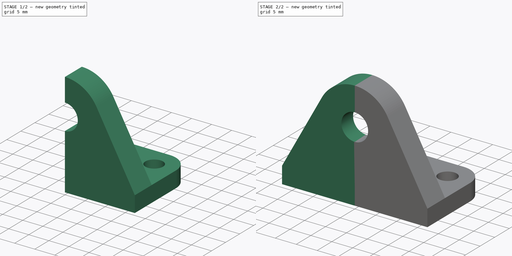
[diagram: build sequence overview — one tinted view per stage of 2, left to right]
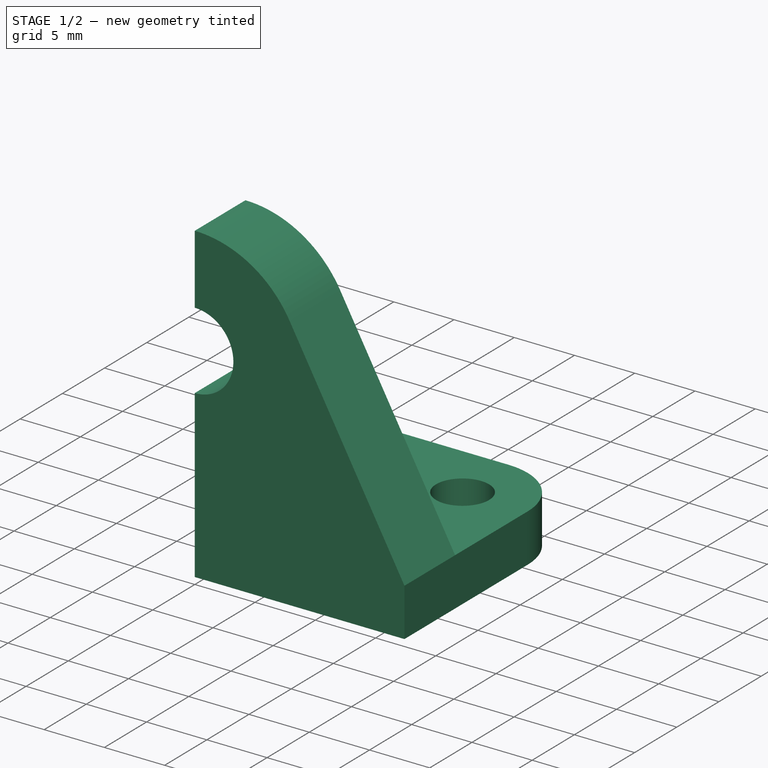
[diagram: stage 1 of 2 — iso view after this stage's code; geometry added in this stage tinted green]
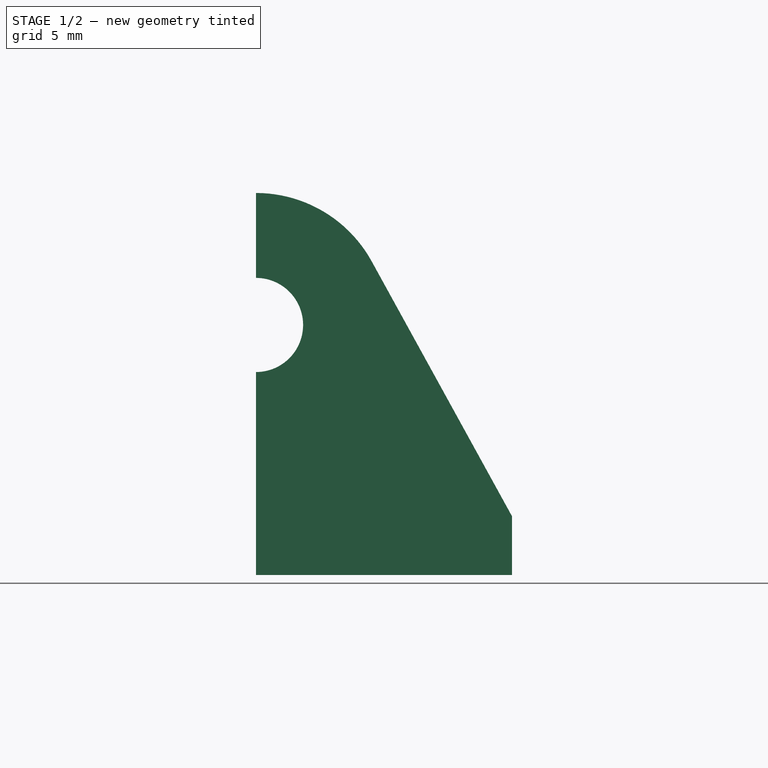
[diagram: stage 1 of 2 — front view after this stage's code; geometry added in this stage tinted green]
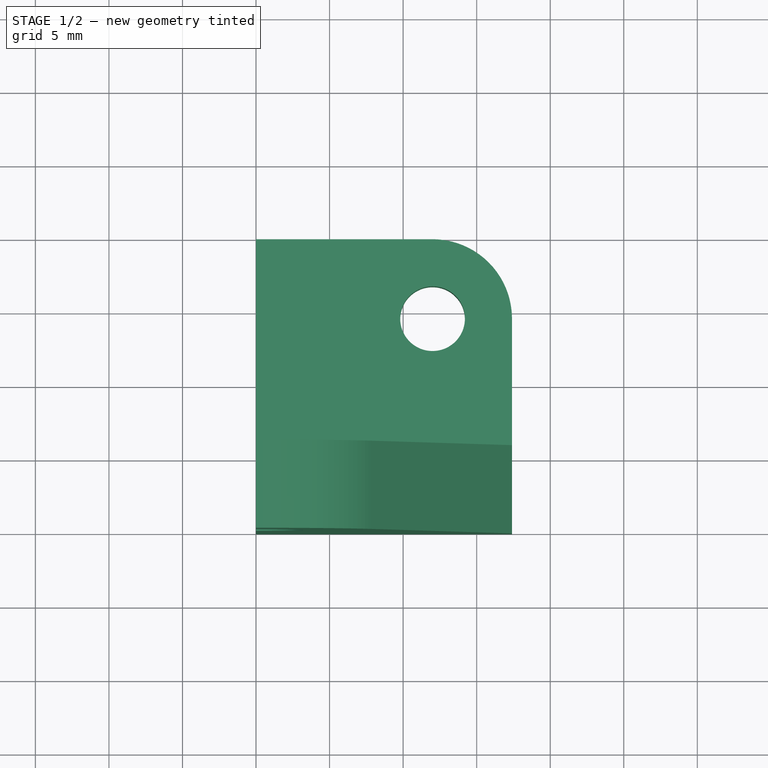
[diagram: stage 1 of 2 — top view after this stage's code; geometry added in this stage tinted green]
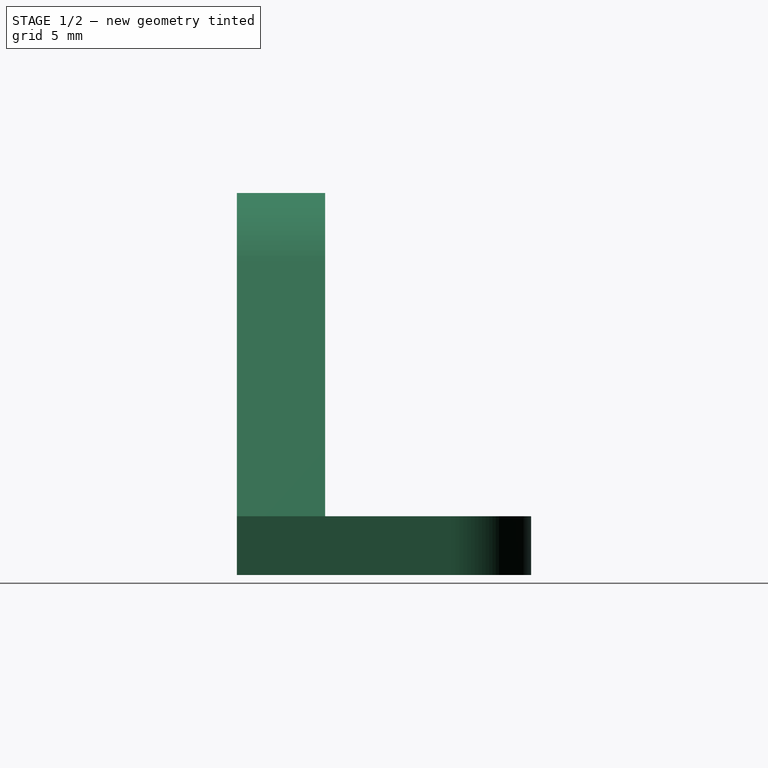
[diagram: stage 1 of 2 — right view after this stage's code; geometry added in this stage tinted green]
FCSTD DOCUMENT  (FreeCAD 0.19R24291 (Git))
Label: Крепёж болта съёма подложки
License: All rights reserved
LicenseURL: http://en.wikipedia.org/wiki/All_rights_reserved
objects: Sketcher::SketchObject×3, PartDesign::Pad×2, PartDesign::Pocket×1, PartDesign::Mirrored×1, PartDesign::Body×1
note: 11 computed .brp shape members not serialized (recipe doc carries the construction recipe); baked Part::Feature solids carry a one-line shape summary decoded from their .brp

FEATURE [Sketcher::SketchObject] Sketch
  FullyConstrained = true
  MapMode = 5
  Support = -> [XY_Plane]
  sketch-geometry (6):
    g0: LineSegment StartX=0 StartY=0 StartZ=0 EndX=17.4 EndY=0 EndZ=0
    g1: LineSegment StartX=17.4 StartY=0 StartZ=0 EndX=17.4 EndY=14.6 EndZ=0
    g2: LineSegment StartX=12 StartY=20 StartZ=0 EndX=0 EndY=20 EndZ=0
    g3: LineSegment StartX=0 StartY=20 StartZ=0 EndX=0 EndY=0 EndZ=0
    g4: ArcOfCircle CenterX=12 CenterY=14.6 CenterZ=0 NormalX=0 NormalY=0 NormalZ=1 AngleXU=0 Radius=5.4 StartAngle=2e-16 EndAngle=1.5708
    g5: Circle CenterX=12 CenterY=14.6 CenterZ=0 NormalX=0 NormalY=0 NormalZ=1 AngleXU=0 Radius=2.2
  constraints (16):
    c: Coincident(g0,g1)
    c: Coincident(g2,g3)
    c: Coincident(g3,g0)
    c: Horizontal(g0)
    c: Horizontal(g2)
    c: Vertical(g1)
    c: Vertical(g3)
    c: Coincident(g0,g-1)
    c: Tangent(g2,g4) = -1.5708
    c: Tangent(g1,g4) = -1.5708
    c: Coincident(g5,g4)
    c: Distance(g4,g-2) = 12
    c: Distance(g3) = 20
    c: Diameter(g5) = 4.4
    c: Radius(g4) = 5.4
    c: Distance(g0) = 17.4  'width'
FEATURE [Sketcher::SketchObject] Sketch001
  FullyConstrained = true
  MapMode = 5
  Placement = pos=(0,0,0) rot=(1,0,0;1.5708rad)
  Support = -> [XZ_Plane]
  expr: Constraints[24] = Sketch.Constraints[15]
  sketch-geometry (14):
    g0: ArcOfCircle CenterX=0 CenterY=17 CenterZ=0 NormalX=0 NormalY=0 NormalZ=1 AngleXU=0 Radius=3.2 StartAngle=4.71239 EndAngle=7.85398
    g1: LineSegment StartX=0 StartY=22.7735 StartZ=0 EndX=-5 EndY=19.8868 EndZ=0
    g2: LineSegment StartX=-5 StartY=19.8868 StartZ=0 EndX=-5 EndY=14.1132 EndZ=0
    g3: LineSegment StartX=-5 StartY=14.1132 StartZ=0 EndX=9e-16 EndY=11.2265 EndZ=0
    g4: LineSegment StartX=9e-16 StartY=11.2265 StartZ=0 EndX=5 EndY=14.1132 EndZ=0
    g5: LineSegment StartX=5 StartY=14.1132 StartZ=0 EndX=5 EndY=19.8868 EndZ=0
    g6: LineSegment StartX=5 StartY=19.8868 StartZ=0 EndX=0 EndY=22.7735 EndZ=0
    g7: Circle CenterX=0 CenterY=17 CenterZ=0 NormalX=0 NormalY=0 NormalZ=1 AngleXU=0 Radius=5.7735
    g8: LineSegment StartX=-6e-16 StartY=0 StartZ=0 EndX=17.4 EndY=0 EndZ=0
    g9: LineSegment StartX=17.4 StartY=0 StartZ=0 EndX=17.4 EndY=4 EndZ=0
    g10: LineSegment StartX=-6e-16 StartY=13.8 StartZ=0 EndX=-6e-16 EndY=0 EndZ=0
    g11: LineSegment StartX=5e-16 StartY=20.2 StartZ=0 EndX=5e-16 EndY=25.9735 EndZ=0
    g12: ArcOfCircle CenterX=0 CenterY=17 CenterZ=0 NormalX=0 NormalY=0 NormalZ=1 AngleXU=0 Radius=8.9735 StartAngle=0.50323 EndAngle=1.5708
    g13: LineSegment StartX=7.86105 StartY=21.3275 StartZ=0 EndX=17.4 EndY=4 EndZ=0
  constraints (37):
    c: PointOnObject(g0,g-2)
    c: Coincident(g1,g2)
    c: Coincident(g2,g3)
    c: Coincident(g3,g4)
    c: Coincident(g4,g5)
    c: Coincident(g5,g6)
    c: Coincident(g6,g1)
    c: Equal(g1, g2-g6) x5
    c: PointOnObject(g1,g7)
    c: PointOnObject(g2,g7)
    c: PointOnObject(g3,g7)
    c: PointOnObject(g4,g7)
    c: PointOnObject(g5,g7)
    c: PointOnObject(g6,g7)
    c: Coincident(g7,g0)
    c: PointOnObject(g6,g-2)
    c: Diameter(g0) = 6.4
    c: Distance(g4,g2) = 10
    c: Coincident(g8,g-1)
    c: PointOnObject(g8,g-1)
    c: Distance(g8) = 17.4
    c: Coincident(g9,g8)
    c: Vertical(g9)
    c: Distance(g9) = 4
    c: Distance(g8,g0) = 17
    c: Coincident(g10,g8)
    c: Vertical(g10)
    c: PointOnObject(g11,g-2)
    c: Vertical(g11)
    c: Coincident(g12,g0)
    c: Coincident(g12,g11)
    c: Coincident(g13,g12)
    c: Coincident(g13,g9)
    c: Tangent(g12,g13)
    c: Coincident(g0,g10)
    c: Coincident(g0,g11)
    c: Distance(g1,g11) = 3.2
FEATURE [PartDesign::Pad] Pad
  Direction = (1,1,1)
  Length = 4
  Length2 = 100
  Profile = -> Sketch
  Type = 0
FEATURE [PartDesign::Pad] Pad001
  BaseFeature = -> Pad
  Direction = (1,1,1)
  Length = 6
  Length2 = 100
  Profile = -> Sketch001
  Reversed = true
  Type = 0
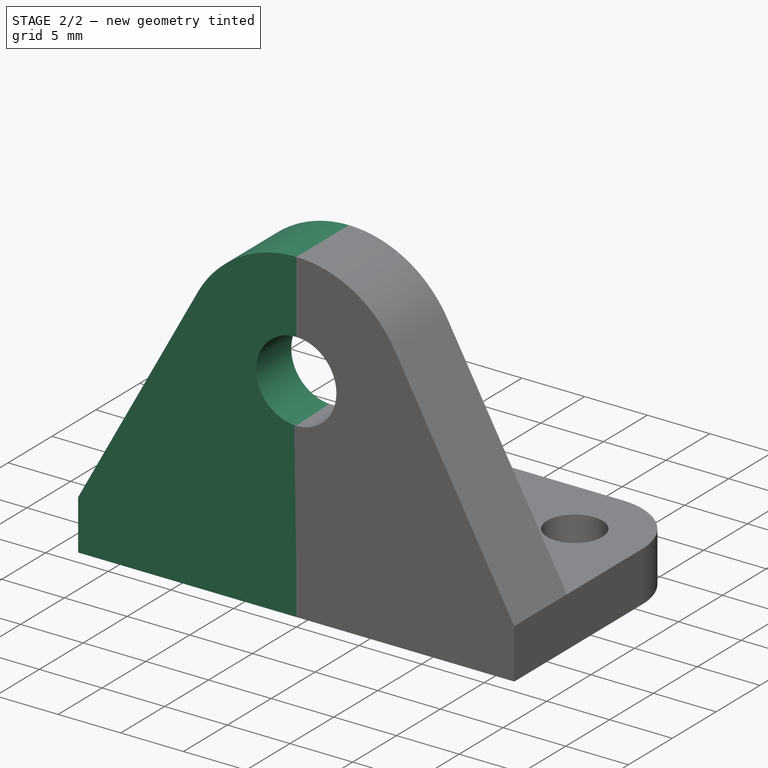
[diagram: stage 2 of 2 — iso view after this stage's code; geometry added in this stage tinted green]
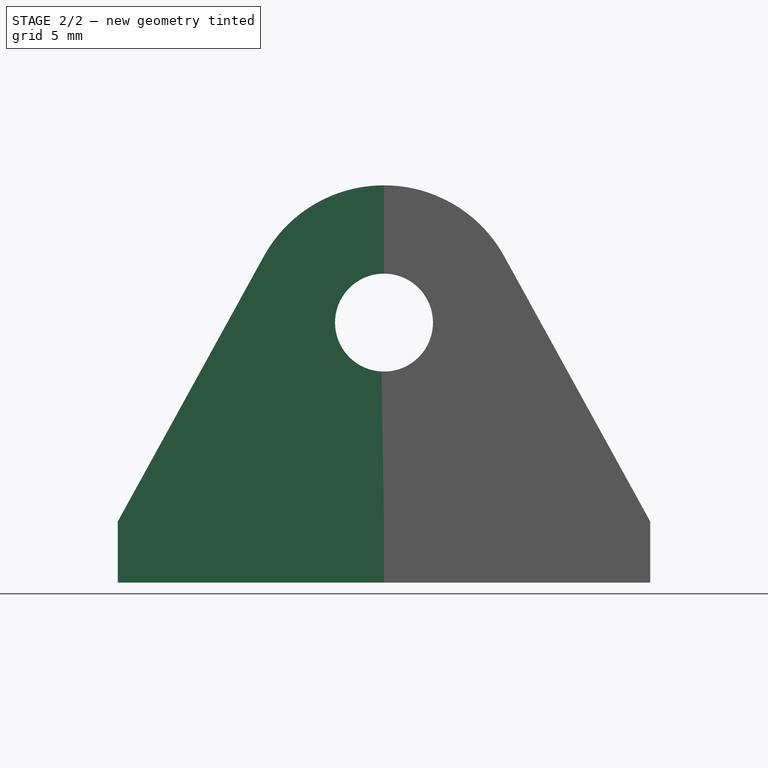
[diagram: stage 2 of 2 — front view after this stage's code; geometry added in this stage tinted green]
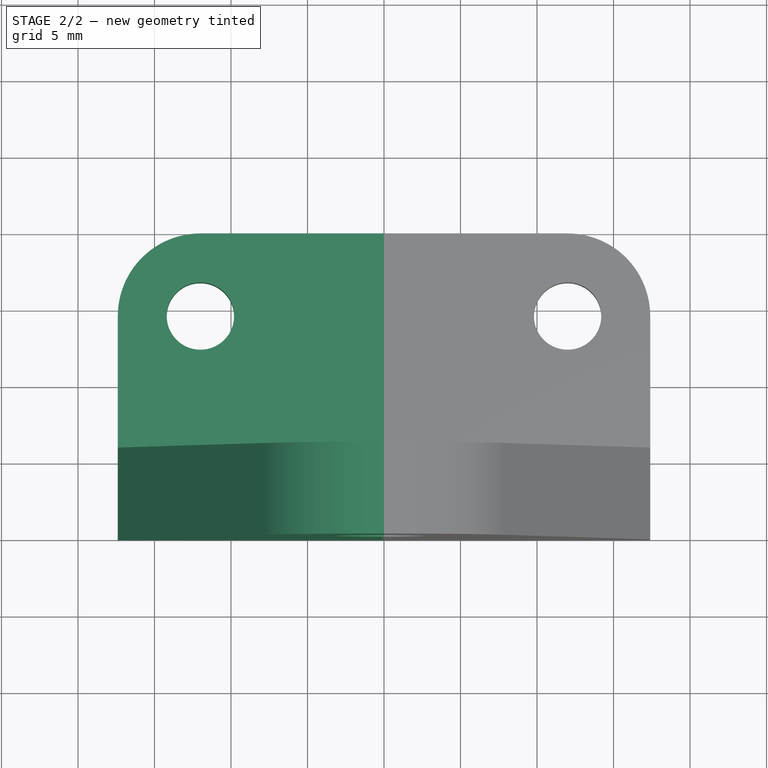
[diagram: stage 2 of 2 — top view after this stage's code; geometry added in this stage tinted green]
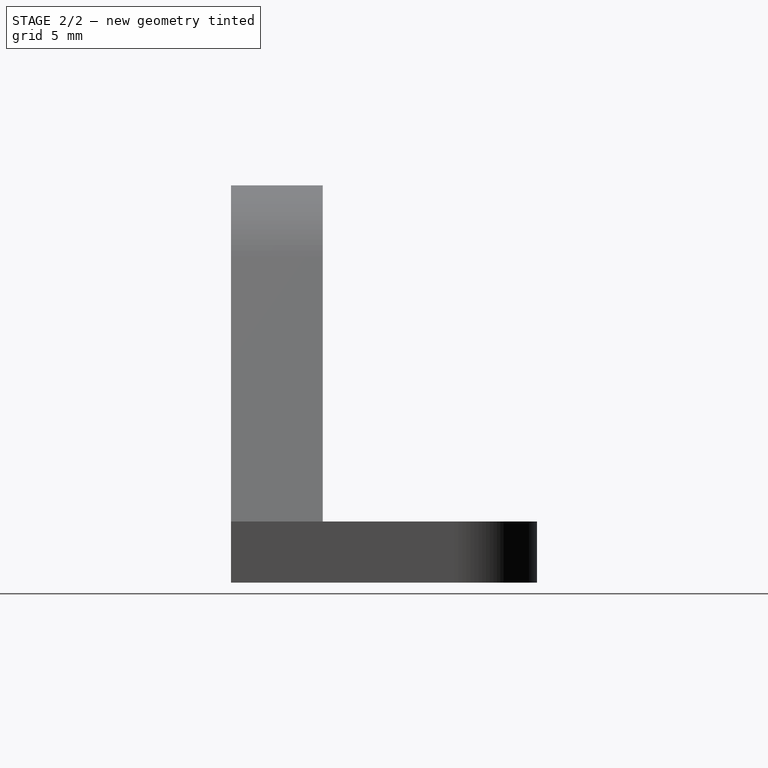
[diagram: stage 2 of 2 — right view after this stage's code; geometry added in this stage tinted green]
FEATURE [Sketcher::SketchObject] Sketch002
  AttachmentOffset = pos=(0,0,-6) rot=(0,0,1;0rad)
  FullyConstrained = true
  MapMode = 5
  Placement = pos=(0,6,-1.3e-15) rot=(1,0,0;1.5708rad)
  Support = -> [XZ_Plane]
  sketch-geometry (7):
    g0: LineSegment StartX=0 StartY=22.7735 StartZ=0 EndX=-5 EndY=19.8868 EndZ=0
    g1: LineSegment StartX=-5 StartY=19.8868 StartZ=0 EndX=-5 EndY=14.1132 EndZ=0
    g2: LineSegment StartX=-5 StartY=14.1132 StartZ=0 EndX=-4.4e-15 EndY=11.2265 EndZ=0
    g3: LineSegment StartX=-4.4e-15 StartY=11.2265 StartZ=0 EndX=5 EndY=14.1132 EndZ=0
    g4: LineSegment StartX=5 StartY=14.1132 StartZ=0 EndX=5 EndY=19.8868 EndZ=0
    g5: LineSegment StartX=5 StartY=19.8868 StartZ=0 EndX=0 EndY=22.7735 EndZ=0
    g6: Circle CenterX=0 CenterY=17 CenterZ=0 NormalX=0 NormalY=0 NormalZ=1 AngleXU=0 Radius=5.7735
  constraints (17):
    c: Coincident(g0,g1)
    c: Coincident(g1,g2)
    c: Coincident(g2,g3)
    c: Coincident(g3,g4)
    c: Coincident(g4,g5)
    c: Coincident(g5,g0)
    c: Equal(g0, g1-g5) x5
    c: PointOnObject(g0,g6)
    c: PointOnObject(g1,g6)
    c: PointOnObject(g2,g6)
    c: PointOnObject(g3,g6)
    c: PointOnObject(g4,g6)
    c: PointOnObject(g5,g6)
    c: PointOnObject(g6,g-2)
    c: PointOnObject(g5,g-2)
    c: Distance(g3,g1) = 10
    c: Distance(g6,g-1) = 17
FEATURE [PartDesign::Pocket] Pocket
  BaseFeature = -> Pad001
  Length = 2
  Length2 = 100
  Profile = -> Sketch002
  Reversed = true
  Type = 0
FEATURE [PartDesign::Mirrored] Mirrored
  BaseFeature = -> Pocket
  MirrorPlane = -> Sketch [V_Axis]
  Originals = -> [Pad,Pad001,Pocket]
FEATURE [PartDesign::Body] Body
  Group = -> [Sketch,Sketch001,Pad,Pad001,Sketch002,Pocket,Mirrored]
  Origin = -> Origin
  Tip = -> Mirrored
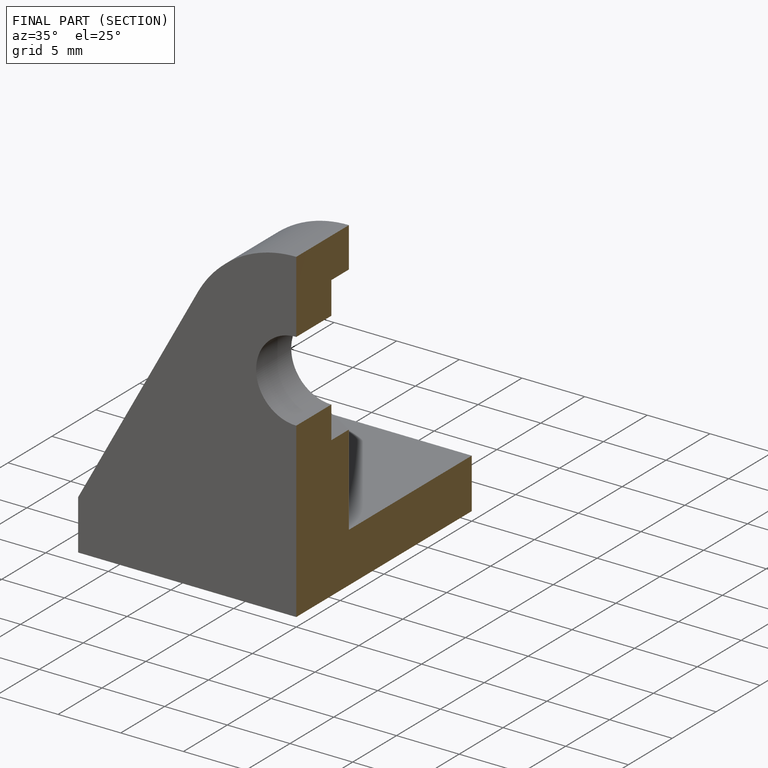
[diagram: finished part — half-section view (interior)]
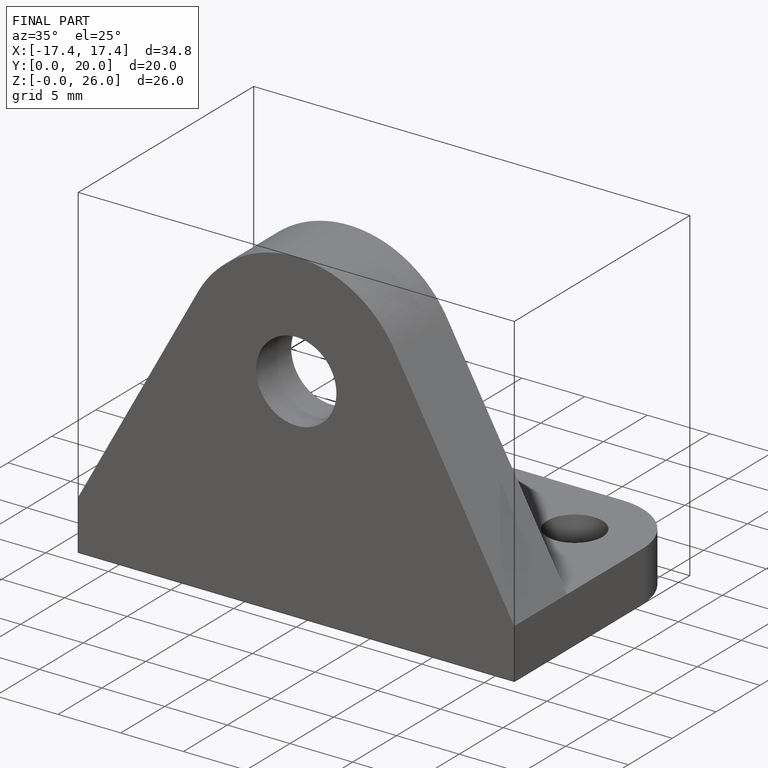
[diagram: finished part — iso view with bounding-box wireframe]
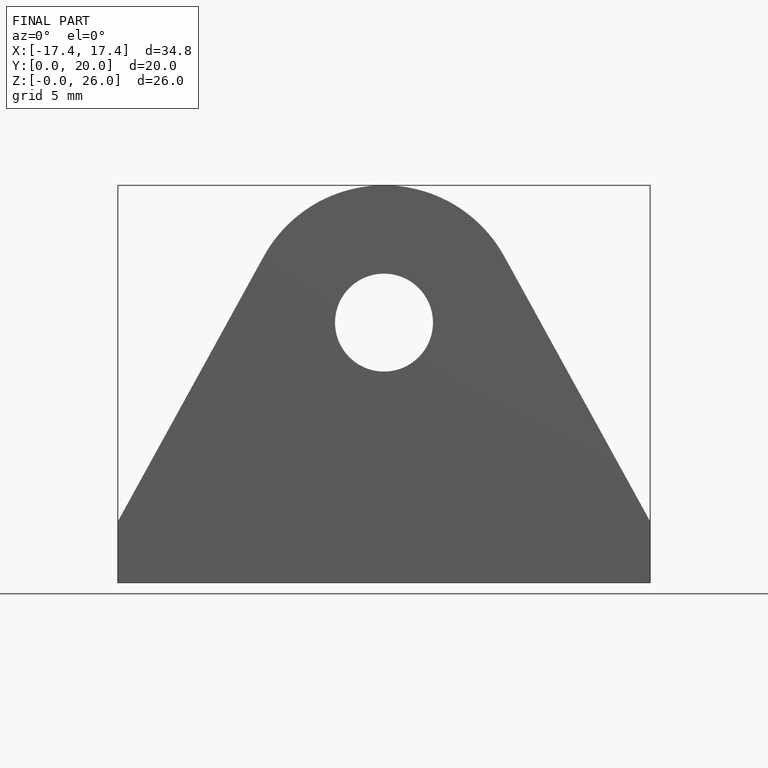
[diagram: finished part — front view with bounding-box wireframe]
